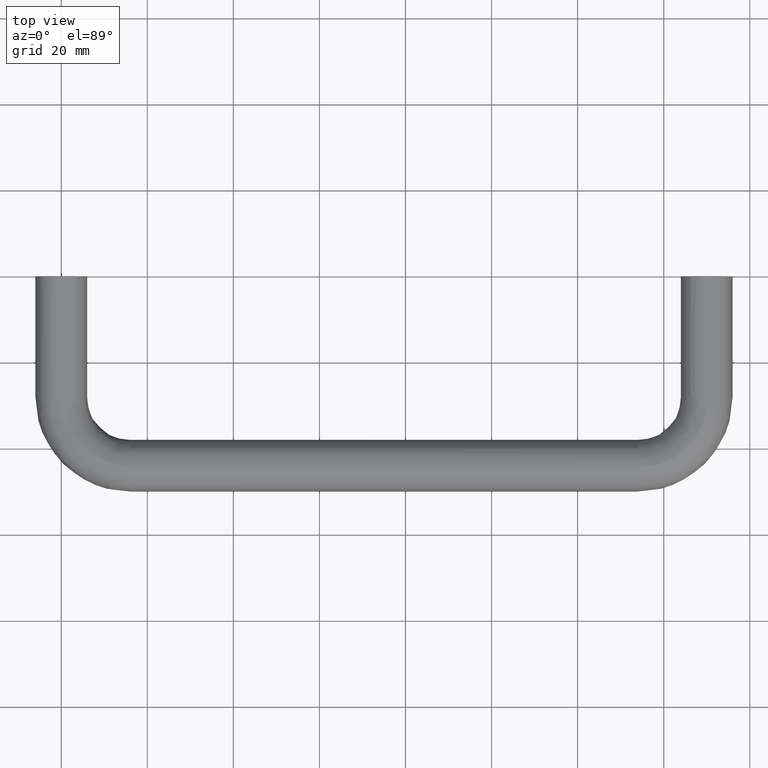
[diagram: clean part render]
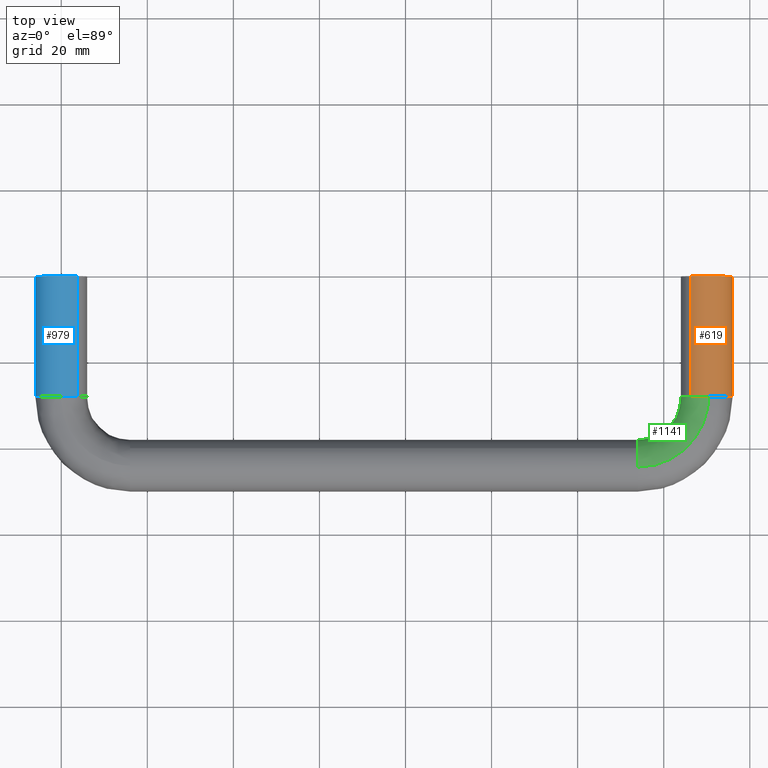
[diagram: same view with three faces highlighted in distinct colors, each labeled with its STEP entity id]
A machine part, top view with three faces highlighted in distinct colors.
Their STEP definitions:

[orange] entity #619 — the highlighted face is a freeform B-spline surface patch.
#428=CARTESIAN_POINT('',(153.735087819826500,-28.0,-4.695648941113861));
#429=VERTEX_POINT('',#428);
#460=CARTESIAN_POINT('',(146.264912180173500,-28.0,4.695648941113861));
#461=VERTEX_POINT('',#460);
#475=CARTESIAN_POINT('',(146.264915565131500,1.766642E-014,4.695651633626986));
#476=VERTEX_POINT('',#475);
#477=CARTESIAN_POINT('',(146.264912180173500,-28.0,4.695648941113861));
#478=CARTESIAN_POINT('',(146.264915565131500,1.766642E-014,4.695651633626986));
#479=QUASI_UNIFORM_CURVE('',1,(#477,#478),.UNSPECIFIED.,.F.,.U.);
#480=EDGE_CURVE('',#461,#476,#479,.T.);
#497=CARTESIAN_POINT('',(153.735084434868610,1.949829E-014,-4.695651633626984));
#498=VERTEX_POINT('',#497);
#514=CARTESIAN_POINT('',(153.735087819826500,-28.0,-4.695648941113861));
#515=CARTESIAN_POINT('',(153.735084434868610,1.949829E-014,-4.695651633626984));
#516=QUASI_UNIFORM_CURVE('',1,(#514,#515),.UNSPECIFIED.,.F.,.U.);
#517=EDGE_CURVE('',#429,#498,#516,.T.);
#522=CARTESIAN_POINT('',(146.264912180174290,-28.700000000863149,4.695648941114484));
#523=CARTESIAN_POINT('',(150.960561121288800,-28.700000000863156,8.430736760940201));
#524=CARTESIAN_POINT('',(154.695648941114510,-28.700000000863149,3.735087819825715));
#525=CARTESIAN_POINT('',(158.430736760940250,-28.700000000863156,-0.960561121288768));
#526=CARTESIAN_POINT('',(153.735087819825710,-28.700000000863149,-4.695648941114484));
#527=CARTESIAN_POINT('',(146.264912180174290,0.717500000021598,4.695648941114484));
#528=CARTESIAN_POINT('',(150.960561121288800,0.717500000021598,8.430736760940201));
#529=CARTESIAN_POINT('',(154.695648941114510,0.717500000021598,3.735087819825715));
#530=CARTESIAN_POINT('',(158.430736760940250,0.717500000021598,-0.960561121288768));
#531=CARTESIAN_POINT('',(153.735087819825710,0.717500000021598,-4.695648941114484));
#539=(BOUNDED_SURFACE()B_SPLINE_SURFACE(2,1,((#522,#527),(#523,#528),(#524,#529),(#525,#530),(#526,#531)),.UNSPECIFIED.,.F.,.F.,.U.)B_SPLINE_SURFACE_WITH_KNOTS((3,2,3),(2,2),(0.0,9.941125496954282,19.882250993908560),(0.0,29.417500000884750),.UNSPECIFIED.)GEOMETRIC_REPRESENTATION_ITEM()RATIONAL_B_SPLINE_SURFACE(((1.0,1.0),(0.707106781186548,0.707106781186548),(1.0,1.0),(0.707106781186548,0.707106781186548),(1.0,1.0)))REPRESENTATION_ITEM('')SURFACE());
#540=CARTESIAN_POINT('',(156.0,-28.0,0.0));
#541=VERTEX_POINT('',#540);
#542=CARTESIAN_POINT('',(153.735087819826500,-27.999999999999996,-4.695648941113861));
#543=CARTESIAN_POINT('',(156.000000000000030,-27.999999999999996,-2.894056444904190));
#544=CARTESIAN_POINT('',(156.0,-28.0,0.0));
#552=(BOUNDED_CURVE()B_SPLINE_CURVE(2,(#542,#543,#544),.UNSPECIFIED.,.F.,.U.)B_SPLINE_CURVE_WITH_KNOTS((3,3),(0.357863877391496,0.500000000000000),.UNSPECIFIED.)CURVE()GEOMETRIC_REPRESENTATION_ITEM()RATIONAL_B_SPLINE_CURVE((0.856305618644054,0.833477174158127,1.0))REPRESENTATION_ITEM(''));
#553=EDGE_CURVE('',#429,#541,#552,.T.);
#554=ORIENTED_EDGE('',*,*,#553,.F.);
#555=ORIENTED_EDGE('',*,*,#517,.T.);
#556=CARTESIAN_POINT('',(156.0,1.734723E-014,0.0));
#557=VERTEX_POINT('',#556);
#558=CARTESIAN_POINT('',(153.735084434868530,1.949829E-014,-4.695651633626985));
#559=CARTESIAN_POINT('',(155.999999999999970,1.734723E-014,-2.894059110659049));
#560=CARTESIAN_POINT('',(156.0,1.734723E-014,0.0));
#568=(BOUNDED_CURVE()B_SPLINE_CURVE(2,(#558,#559,#560),.UNSPECIFIED.,.F.,.U.)B_SPLINE_CURVE_WITH_KNOTS((3,3),(0.357863768269746,0.500000000000000),.UNSPECIFIED.)CURVE()GEOMETRIC_REPRESENTATION_ITEM()RATIONAL_B_SPLINE_CURVE((0.856305653696195,0.833477046314045,1.0))REPRESENTATION_ITEM(''));
#569=EDGE_CURVE('',#498,#557,#568,.T.);
#570=ORIENTED_EDGE('',*,*,#569,.T.);
#571=CARTESIAN_POINT('',(156.0,1.734723E-014,0.0));
#572=CARTESIAN_POINT('',(155.999999999999970,1.734723E-014,6.0));
#573=CARTESIAN_POINT('',(150.0,1.734723E-014,6.0));
#574=CARTESIAN_POINT('',(147.904708625816080,1.734723E-014,5.999999999999999));
#575=CARTESIAN_POINT('',(146.264915565131420,1.766642E-014,4.695651633626986));
#583=(BOUNDED_CURVE()B_SPLINE_CURVE(2,(#571,#572,#573,#574,#575),.UNSPECIFIED.,.F.,.U.)B_SPLINE_CURVE_WITH_KNOTS((3,2,3),(0.500000000000000,0.750000000000000,0.857863768269746),.UNSPECIFIED.)CURVE()GEOMETRIC_REPRESENTATION_ITEM()RATIONAL_B_SPLINE_CURVE((1.0,0.707106781186548,1.0,0.873629734872503,0.856305653696196))REPRESENTATION_ITEM(''));
#584=EDGE_CURVE('',#557,#476,#583,.T.);
#585=ORIENTED_EDGE('',*,*,#584,.T.);
#586=ORIENTED_EDGE('',*,*,#480,.F.);
#587=CARTESIAN_POINT('',(150.418399513655600,-28.000000000842100,5.985394042748796));
#588=VERTEX_POINT('',#587);
#589=CARTESIAN_POINT('',(150.418399513655570,-28.000000000842100,5.985394042748796));
#590=CARTESIAN_POINT('',(150.209454699466590,-28.000000000000004,5.999999999999999));
#591=CARTESIAN_POINT('',(150.0,-28.0,6.0));
#592=CARTESIAN_POINT('',(147.904706199469700,-27.999999999999996,6.0));
#593=CARTESIAN_POINT('',(146.264912180173550,-28.000000000000007,4.695648941113861));
#601=(BOUNDED_CURVE()B_SPLINE_CURVE(2,(#589,#590,#591,#592,#593),.UNSPECIFIED.,.F.,.U.)B_SPLINE_CURVE_WITH_KNOTS((3,2,3),(0.737833686293604,0.750000000000000,0.857863877391495),.UNSPECIFIED.)CURVE()GEOMETRIC_REPRESENTATION_ITEM()RATIONAL_B_SPLINE_CURVE((0.972879875876209,0.985746276869758,1.0,0.873629607028422,0.856305618644054))REPRESENTATION_ITEM(''));
#602=EDGE_CURVE('',#588,#461,#601,.T.);
#603=ORIENTED_EDGE('',*,*,#602,.F.);
#604=CARTESIAN_POINT('',(156.0,-28.0,0.0));
#605=CARTESIAN_POINT('',(156.000000000000060,-28.0,5.595221075722693));
#606=CARTESIAN_POINT('',(150.418399513655600,-28.000000000842096,5.985394042748796));
#614=(BOUNDED_CURVE()B_SPLINE_CURVE(2,(#604,#605,#606),.UNSPECIFIED.,.F.,.U.)B_SPLINE_CURVE_WITH_KNOTS((3,3),(0.500000000000000,0.737833686293605),.UNSPECIFIED.)CURVE()GEOMETRIC_REPRESENTATION_ITEM()RATIONAL_B_SPLINE_CURVE((1.0,0.721360504316789,0.972879875876210))REPRESENTATION_ITEM(''));
#615=EDGE_CURVE('',#541,#588,#614,.T.);
#616=ORIENTED_EDGE('',*,*,#615,.F.);
#617=EDGE_LOOP('',(#554,#555,#570,#585,#586,#603,#616));
#618=FACE_OUTER_BOUND('',#617,.T.);
#619=ADVANCED_FACE('',(#618),#539,.T.);

[blue] entity #979 — the highlighted face is a freeform B-spline surface patch.
#866=CARTESIAN_POINT('',(3.735087819825715,0.700000000037016,4.695648941114483));
#867=CARTESIAN_POINT('',(-0.960561121288767,0.700000000037016,8.430736760940198));
#868=CARTESIAN_POINT('',(-4.695648941114483,0.700000000037015,3.735087819825715));
#869=CARTESIAN_POINT('',(-8.430736760940198,0.700000000037015,-0.960561121288767));
#870=CARTESIAN_POINT('',(-3.735087819825715,0.700000000037016,-4.695648941114483));
#871=CARTESIAN_POINT('',(3.735087819825719,-28.717500001518520,4.695648941114483));
#872=CARTESIAN_POINT('',(-0.960561121288764,-28.717500001518527,8.430736760940198));
#873=CARTESIAN_POINT('',(-4.695648941114479,-28.717500001518520,3.735087819825715));
#874=CARTESIAN_POINT('',(-8.430736760940194,-28.717500001518527,-0.960561121288767));
#875=CARTESIAN_POINT('',(-3.735087819825712,-28.717500001518520,-4.695648941114483));
#883=(BOUNDED_SURFACE()B_SPLINE_SURFACE(2,1,((#866,#871),(#867,#872),(#868,#873),(#869,#874),(#870,#875)),.UNSPECIFIED.,.F.,.F.,.U.)B_SPLINE_SURFACE_WITH_KNOTS((3,2,3),(2,2),(0.0,9.941125496954278,19.882250993908560),(0.0,29.417500001555538),.UNSPECIFIED.)GEOMETRIC_REPRESENTATION_ITEM()RATIONAL_B_SPLINE_SURFACE(((1.0,1.0),(0.707106781186548,0.707106781186548),(1.0,1.0),(0.707106781186548,0.707106781186548),(1.0,1.0)))REPRESENTATION_ITEM('')SURFACE());
#884=CARTESIAN_POINT('',(-0.075396244198473,-28.000000000965699,5.999526265161338));
#885=VERTEX_POINT('',#884);
#886=CARTESIAN_POINT('',(3.735087819826505,-28.0,4.695648941113859));
#887=VERTEX_POINT('',#886);
#888=CARTESIAN_POINT('',(-0.075396244198473,-28.000000000965699,5.999526265161338));
#889=CARTESIAN_POINT('',(-0.037699612850280,-28.000000000000007,6.0));
#890=CARTESIAN_POINT('',(3.428898E-015,-28.0,6.0));
#891=CARTESIAN_POINT('',(2.095293800530349,-27.999999999999993,6.0));
#892=CARTESIAN_POINT('',(3.735087819826505,-28.0,4.695648941113860));
#900=(BOUNDED_CURVE()B_SPLINE_CURVE(2,(#888,#889,#890,#891,#892),.UNSPECIFIED.,.F.,.U.)B_SPLINE_CURVE_WITH_KNOTS((3,2,3),(0.747784295634552,0.750000000000000,0.857863877391495),.UNSPECIFIED.)CURVE()GEOMETRIC_REPRESENTATION_ITEM()RATIONAL_B_SPLINE_CURVE((0.994854294983044,0.997404140865859,1.0,0.873629607028422,0.856305618644054))REPRESENTATION_ITEM(''));
#901=EDGE_CURVE('',#885,#887,#900,.T.);
#902=ORIENTED_EDGE('',*,*,#901,.T.);
#903=CARTESIAN_POINT('',(3.735084434868582,-5.551115E-017,4.695651633626980));
#904=VERTEX_POINT('',#903);
#905=CARTESIAN_POINT('',(3.735084434868582,-5.551115E-017,4.695651633626980));
#906=CARTESIAN_POINT('',(3.735087819826505,-28.0,4.695648941113859));
#907=QUASI_UNIFORM_CURVE('',1,(#905,#906),.UNSPECIFIED.,.F.,.U.);
#908=EDGE_CURVE('',#904,#887,#907,.T.);
#909=ORIENTED_EDGE('',*,*,#908,.F.);
#910=CARTESIAN_POINT('',(-6.0,0.0,0.0));
#911=VERTEX_POINT('',#910);
#912=CARTESIAN_POINT('',(-6.0,0.0,0.0));
#913=CARTESIAN_POINT('',(-6.0,0.0,6.0));
#914=CARTESIAN_POINT('',(0.0,0.0,6.0));
#915=CARTESIAN_POINT('',(2.095291374183921,0.0,5.999999999999999));
#916=CARTESIAN_POINT('',(3.735084434868583,-5.551115E-017,4.695651633626980));
#924=(BOUNDED_CURVE()B_SPLINE_CURVE(2,(#912,#913,#914,#915,#916),.UNSPECIFIED.,.F.,.U.)B_SPLINE_CURVE_WITH_KNOTS((3,2,3),(0.500000000000000,0.750000000000000,0.857863768269747),.UNSPECIFIED.)CURVE()GEOMETRIC_REPRESENTATION_ITEM()RATIONAL_B_SPLINE_CURVE((1.0,0.707106781186548,1.0,0.873629734872502,0.856305653696195))REPRESENTATION_ITEM(''));
#925=EDGE_CURVE('',#911,#904,#924,.T.);
#926=ORIENTED_EDGE('',*,*,#925,.F.);
#927=CARTESIAN_POINT('',(-3.735084434868582,-4.996004E-016,-4.695651633626980));
#928=VERTEX_POINT('',#927);
#929=CARTESIAN_POINT('',(-3.735084434868583,-4.996004E-016,-4.695651633626980));
#930=CARTESIAN_POINT('',(-6.000000000000001,0.0,-2.894059110659037));
#931=CARTESIAN_POINT('',(-6.0,0.0,0.0));
#939=(BOUNDED_CURVE()B_SPLINE_CURVE(2,(#929,#930,#931),.UNSPECIFIED.,.F.,.U.)B_SPLINE_CURVE_WITH_KNOTS((3,3),(0.357863768269747,0.500000000000000),.UNSPECIFIED.)CURVE()GEOMETRIC_REPRESENTATION_ITEM()RATIONAL_B_SPLINE_CURVE((0.856305653696195,0.833477046314046,1.0))REPRESENTATION_ITEM(''));
#940=EDGE_CURVE('',#928,#911,#939,.T.);
#941=ORIENTED_EDGE('',*,*,#940,.F.);
#942=CARTESIAN_POINT('',(-3.735087819826497,-28.0,-4.695648941113859));
#943=VERTEX_POINT('',#942);
#944=CARTESIAN_POINT('',(-3.735084434868582,-4.996004E-016,-4.695651633626980));
#945=CARTESIAN_POINT('',(-3.735087819826497,-28.0,-4.695648941113859));
#946=QUASI_UNIFORM_CURVE('',1,(#944,#945),.UNSPECIFIED.,.F.,.U.);
#947=EDGE_CURVE('',#928,#943,#946,.T.);
#948=ORIENTED_EDGE('',*,*,#947,.T.);
#949=CARTESIAN_POINT('',(-5.999999999999996,-28.0,0.0));
#950=VERTEX_POINT('',#949);
#951=CARTESIAN_POINT('',(-3.735087819826497,-27.999999999999996,-4.695648941113859));
#952=CARTESIAN_POINT('',(-5.999999999999996,-27.999999999999989,-2.894056444904187));
#953=CARTESIAN_POINT('',(-5.999999999999996,-28.0,0.0));
#961=(BOUNDED_CURVE()B_SPLINE_CURVE(2,(#951,#952,#953),.UNSPECIFIED.,.F.,.U.)B_SPLINE_CURVE_WITH_KNOTS((3,3),(0.357863877391496,0.500000000000000),.UNSPECIFIED.)CURVE()GEOMETRIC_REPRESENTATION_ITEM()RATIONAL_B_SPLINE_CURVE((0.856305618644054,0.833477174158127,1.0))REPRESENTATION_ITEM(''));
#962=EDGE_CURVE('',#943,#950,#961,.T.);
#963=ORIENTED_EDGE('',*,*,#962,.T.);
#964=CARTESIAN_POINT('',(-5.999999999999996,-28.0,0.0));
#965=CARTESIAN_POINT('',(-5.999999999999996,-28.000000000000004,5.925071569767982));
#966=CARTESIAN_POINT('',(-0.075396244198473,-28.000000000965702,5.999526265161338));
#974=(BOUNDED_CURVE()B_SPLINE_CURVE(2,(#964,#965,#966),.UNSPECIFIED.,.F.,.U.)B_SPLINE_CURVE_WITH_KNOTS((3,3),(0.500000000000000,0.747784295634552),.UNSPECIFIED.)CURVE()GEOMETRIC_REPRESENTATION_ITEM()RATIONAL_B_SPLINE_CURVE((1.0,0.709702640320688,0.994854294983045))REPRESENTATION_ITEM(''));
#975=EDGE_CURVE('',#950,#885,#974,.T.);
#976=ORIENTED_EDGE('',*,*,#975,.T.);
#977=EDGE_LOOP('',(#902,#909,#926,#941,#948,#963,#976));
#978=FACE_OUTER_BOUND('',#977,.T.);
#979=ADVANCED_FACE('',(#978),#883,.T.);

[green] entity #1141 — the highlighted face is a freeform B-spline surface patch.
#426=CARTESIAN_POINT('',(149.924603760638690,-27.999999999982361,-5.999526265222126));
#427=VERTEX_POINT('',#426);
#445=CARTESIAN_POINT('',(144.0,-28.0,0.0));
#446=VERTEX_POINT('',#445);
#447=CARTESIAN_POINT('',(144.0,-28.0,0.0));
#448=CARTESIAN_POINT('',(144.000000000000030,-27.999999999999996,-5.925071579323057));
#449=CARTESIAN_POINT('',(149.924603760638690,-27.999999999982361,-5.999526265222126));
#457=(BOUNDED_CURVE()B_SPLINE_CURVE(2,(#447,#448,#449),.UNSPECIFIED.,.F.,.U.)B_SPLINE_CURVE_WITH_KNOTS((3,3),(0.0,0.247784295918142),.UNSPECIFIED.)CURVE()GEOMETRIC_REPRESENTATION_ITEM()RATIONAL_B_SPLINE_CURVE((1.0,0.709702639988442,0.994854295635758))REPRESENTATION_ITEM(''));
#458=EDGE_CURVE('',#446,#427,#457,.T.);
#460=CARTESIAN_POINT('',(146.264912180173500,-28.0,4.695648941113861));
#461=VERTEX_POINT('',#460);
#462=CARTESIAN_POINT('',(146.264912180173500,-27.999999999999996,4.695648941113861));
#463=CARTESIAN_POINT('',(144.000000000000030,-27.999999999999996,2.894056444904190));
#464=CARTESIAN_POINT('',(144.0,-28.0,0.0));
#472=(BOUNDED_CURVE()B_SPLINE_CURVE(2,(#462,#463,#464),.UNSPECIFIED.,.F.,.U.)B_SPLINE_CURVE_WITH_KNOTS((3,3),(0.857863877391496,1.0),.UNSPECIFIED.)CURVE()GEOMETRIC_REPRESENTATION_ITEM()RATIONAL_B_SPLINE_CURVE((0.856305618644054,0.833477174158127,1.0))REPRESENTATION_ITEM(''));
#473=EDGE_CURVE('',#461,#446,#472,.T.);
#587=CARTESIAN_POINT('',(150.418399513655600,-28.000000000842100,5.985394042748796));
#588=VERTEX_POINT('',#587);
#589=CARTESIAN_POINT('',(150.418399513655570,-28.000000000842100,5.985394042748796));
#590=CARTESIAN_POINT('',(150.209454699466590,-28.000000000000004,5.999999999999999));
#591=CARTESIAN_POINT('',(150.0,-28.0,6.0));
#592=CARTESIAN_POINT('',(147.904706199469700,-27.999999999999996,6.0));
#593=CARTESIAN_POINT('',(146.264912180173550,-28.000000000000007,4.695648941113861));
#601=(BOUNDED_CURVE()B_SPLINE_CURVE(2,(#589,#590,#591,#592,#593),.UNSPECIFIED.,.F.,.U.)B_SPLINE_CURVE_WITH_KNOTS((3,2,3),(0.737833686293604,0.750000000000000,0.857863877391495),.UNSPECIFIED.)CURVE()GEOMETRIC_REPRESENTATION_ITEM()RATIONAL_B_SPLINE_CURVE((0.972879875876209,0.985746276869758,1.0,0.873629607028422,0.856305618644054))REPRESENTATION_ITEM(''));
#602=EDGE_CURVE('',#588,#461,#601,.T.);
#642=CARTESIAN_POINT('',(134.000000001240610,-43.924603758579188,-5.999526265196245));
#643=VERTEX_POINT('',#642);
#715=CARTESIAN_POINT('',(134.0,-40.024282833467112,4.493737087516170));
#716=VERTEX_POINT('',#715);
#722=CARTESIAN_POINT('',(134.0,-38.0,0.0));
#723=VERTEX_POINT('',#722);
#724=CARTESIAN_POINT('',(133.999999999999970,-40.024282833467105,4.493737087516170));
#725=CARTESIAN_POINT('',(134.0,-38.0,2.702805429924981));
#726=CARTESIAN_POINT('',(134.0,-38.0,0.0));
#734=(BOUNDED_CURVE()B_SPLINE_CURVE(2,(#724,#725,#726),.UNSPECIFIED.,.F.,.U.)B_SPLINE_CURVE_WITH_KNOTS((3,3),(0.865779783107242,1.0),.UNSPECIFIED.)CURVE()GEOMETRIC_REPRESENTATION_ITEM()RATIONAL_B_SPLINE_CURVE((0.854350176364253,0.842751234577762,1.0))REPRESENTATION_ITEM(''));
#735=EDGE_CURVE('',#716,#723,#734,.T.);
#737=CARTESIAN_POINT('',(134.0,-38.0,0.0));
#738=CARTESIAN_POINT('',(134.000000000000030,-38.000000000000007,-5.925071575254813));
#739=CARTESIAN_POINT('',(134.000000001240580,-43.924603758579188,-5.999526265196245));
#747=(BOUNDED_CURVE()B_SPLINE_CURVE(2,(#737,#738,#739),.UNSPECIFIED.,.F.,.U.)B_SPLINE_CURVE_WITH_KNOTS((3,3),(0.0,0.247784295797399),.UNSPECIFIED.)CURVE()GEOMETRIC_REPRESENTATION_ITEM()RATIONAL_B_SPLINE_CURVE((1.0,0.709702640129901,0.994854295357854))REPRESENTATION_ITEM(''));
#748=EDGE_CURVE('',#723,#643,#747,.T.);
#786=CARTESIAN_POINT('',(134.000000000308290,-44.418399511450268,5.985394042902953));
#787=VERTEX_POINT('',#786);
#801=CARTESIAN_POINT('',(134.000000000308350,-44.418399511450268,5.985394042902953));
#802=CARTESIAN_POINT('',(133.999999999999970,-44.209454697253200,6.0));
#803=CARTESIAN_POINT('',(134.0,-44.0,6.0));
#804=CARTESIAN_POINT('',(134.0,-41.726805731813229,6.000000000000001));
#805=CARTESIAN_POINT('',(133.999999999999970,-40.024282833467112,4.493737087516169));
#813=(BOUNDED_CURVE()B_SPLINE_CURVE(2,(#801,#802,#803,#804,#805),.UNSPECIFIED.,.F.,.U.)B_SPLINE_CURVE_WITH_KNOTS((3,2,3),(0.737833686420337,0.750000000000000,0.865779783107242),.UNSPECIFIED.)CURVE()GEOMETRIC_REPRESENTATION_ITEM()RATIONAL_B_SPLINE_CURVE((0.972879876144259,0.985746277018234,1.0,0.864355546608786,0.854350176364253))REPRESENTATION_ITEM(''));
#814=EDGE_CURVE('',#787,#716,#813,.T.);
#1078=CARTESIAN_POINT('',(132.858312176858820,-44.378656248895858,5.985394066133805));
#1079=CARTESIAN_POINT('',(151.691435207828900,-45.691434715543750,5.985394066133804));
#1080=CARTESIAN_POINT('',(150.378656217127090,-26.858311721103281,5.985394066133805));
#1081=CARTESIAN_POINT('',(132.870223828893590,-44.207771660237903,5.997368459328779));
#1082=CARTESIAN_POINT('',(151.506853909930130,-45.506853422781191,5.997368459328780));
#1083=CARTESIAN_POINT('',(150.207771628800540,-26.870223377893055,5.997368459328781));
#1084=CARTESIAN_POINT('',(132.882163605699390,-44.036483593546343,5.999526265222895));
#1085=CARTESIAN_POINT('',(151.321836794502810,-45.321836312502107,5.999526265222896));
#1086=CARTESIAN_POINT('',(150.036483562441220,-26.882163159465186,5.999526265222896));
#1087=CARTESIAN_POINT('',(133.299353248056830,-38.051479983738822,6.074922504523010));
#1088=CARTESIAN_POINT('',(144.857124306952390,-38.857124004840045,6.074922504523014));
#1089=CARTESIAN_POINT('',(144.051479964242500,-27.299352968362516,6.074922504523012));
#1090=CARTESIAN_POINT('',(133.304596083693890,-37.976266251115838,0.075396239300117));
#1091=CARTESIAN_POINT('',(144.775882057452950,-38.775881757601248,0.075396239300117));
#1092=CARTESIAN_POINT('',(143.976266231765410,-27.304595806092468,0.075396239300117));
#1093=CARTESIAN_POINT('',(133.309838919330960,-37.901052518492840,-5.924130025922777));
#1094=CARTESIAN_POINT('',(144.694639807953510,-38.694639510362428,-5.924130025922778));
#1095=CARTESIAN_POINT('',(143.901052499288310,-27.309838643822427,-5.924130025922779));
#1096=CARTESIAN_POINT('',(132.892649276973460,-43.886056128300361,-5.999526265222895));
#1097=CARTESIAN_POINT('',(151.159352295503910,-45.159351818024525,-5.999526265222896));
#1098=CARTESIAN_POINT('',(149.886056097487060,-26.892648834925104,-5.999526265222896));
#1106=(BOUNDED_SURFACE()B_SPLINE_SURFACE(2,2,((#1078,#1081,#1084,#1087,#1090,#1093,#1096),(#1079,#1082,#1085,#1088,#1091,#1094,#1097),(#1080,#1083,#1086,#1089,#1092,#1095,#1098)),.UNSPECIFIED.,.F.,.F.,.U.)B_SPLINE_SURFACE_WITH_KNOTS((3,3),(3,2,2,3),(0.0,29.920462421271051),(0.0,0.397644640654329,10.338770137608620,20.279895634562909),.UNSPECIFIED.)GEOMETRIC_REPRESENTATION_ITEM()RATIONAL_B_SPLINE_SURFACE(((0.895729732449210,0.905606490046838,0.916342095240933,0.647951709431553,0.916342095240933,0.647951709431553,0.916342095240933),(0.587800221482116,0.594281596491894,0.601326568744382,0.425202094466791,0.601326568744382,0.425202094466791,0.601326568744382),(0.895729743804760,0.905606501527600,0.916342106857795,0.647951717645915,0.916342106857795,0.647951717645915,0.916342106857795)))REPRESENTATION_ITEM('')SURFACE());
#1107=ORIENTED_EDGE('',*,*,#602,.T.);
#1108=ORIENTED_EDGE('',*,*,#473,.T.);
#1109=ORIENTED_EDGE('',*,*,#458,.T.);
#1110=CARTESIAN_POINT('',(134.000000001240580,-43.924603758579188,-5.999526265196245));
#1111=CARTESIAN_POINT('',(149.924603760735180,-43.924603758218730,-5.999526265222896));
#1112=CARTESIAN_POINT('',(149.924603760638770,-27.999999999982364,-5.999526265222126));
#1120=(BOUNDED_CURVE()B_SPLINE_CURVE(2,(#1110,#1111,#1112),.UNSPECIFIED.,.F.,.U.)B_SPLINE_CURVE_WITH_KNOTS((3,3),(-1.734750791496504,-0.265249208339298),.UNSPECIFIED.)CURVE()GEOMETRIC_REPRESENTATION_ITEM()RATIONAL_B_SPLINE_CURVE((0.889029723519066,0.628638946245584,0.889029723577257))REPRESENTATION_ITEM(''));
#1121=EDGE_CURVE('',#643,#427,#1120,.T.);
#1122=ORIENTED_EDGE('',*,*,#1121,.F.);
#1123=ORIENTED_EDGE('',*,*,#748,.F.);
#1124=ORIENTED_EDGE('',*,*,#735,.F.);
#1125=ORIENTED_EDGE('',*,*,#814,.F.);
#1126=CARTESIAN_POINT('',(134.000000000308380,-44.418399511450268,5.985394042902954));
#1127=CARTESIAN_POINT('',(150.418399507768470,-44.418399508835940,5.985394043042592));
#1128=CARTESIAN_POINT('',(150.418399513655570,-28.000000000842103,5.985394042748795));
#1136=(BOUNDED_CURVE()B_SPLINE_CURVE(2,(#1126,#1127,#1128),.UNSPECIFIED.,.F.,.U.)B_SPLINE_CURVE_WITH_KNOTS((3,3),(-1.734750791619371,-0.265249208448188),.UNSPECIFIED.)CURVE()GEOMETRIC_REPRESENTATION_ITEM()RATIONAL_B_SPLINE_CURVE((0.869031711861739,0.614498216558373,0.869031711838335))REPRESENTATION_ITEM(''));
#1137=EDGE_CURVE('',#787,#588,#1136,.T.);
#1138=ORIENTED_EDGE('',*,*,#1137,.T.);
#1139=EDGE_LOOP('',(#1107,#1108,#1109,#1122,#1123,#1124,#1125,#1138));
#1140=FACE_OUTER_BOUND('',#1139,.T.);
#1141=ADVANCED_FACE('',(#1140),#1106,.T.);